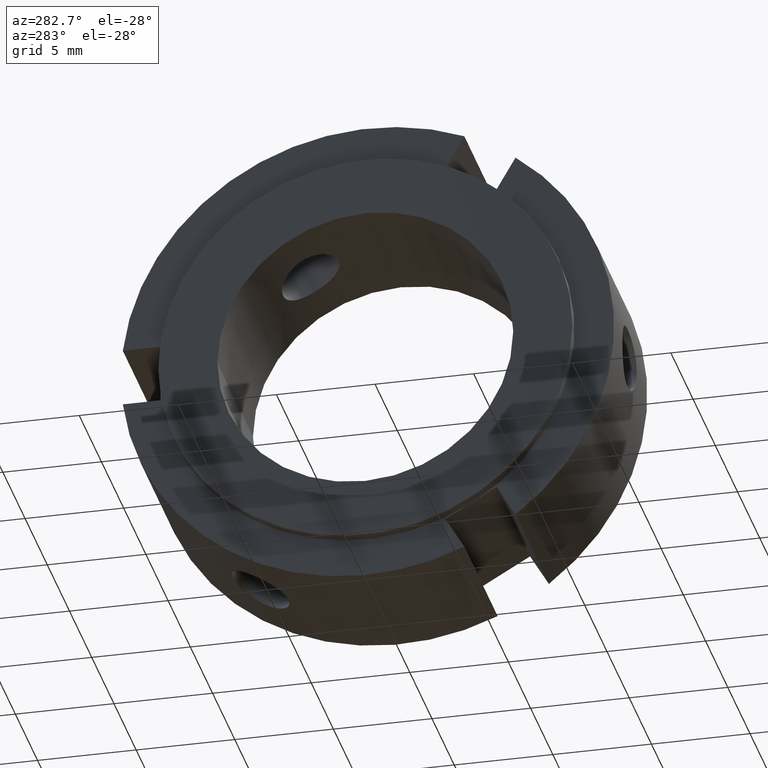
[diagram: clean part render]
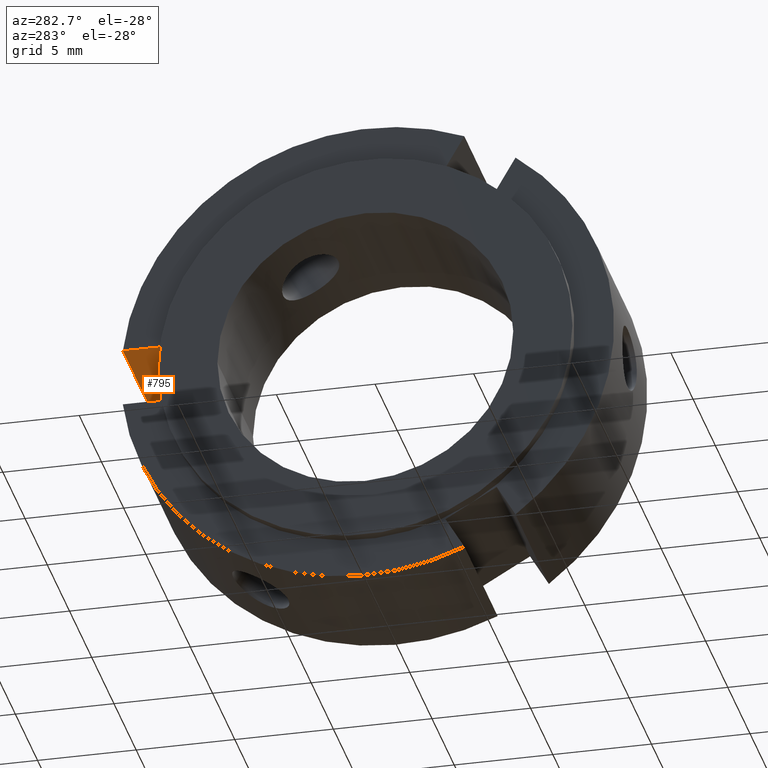
[diagram: same view with one face highlighted and labeled with its STEP entity id]
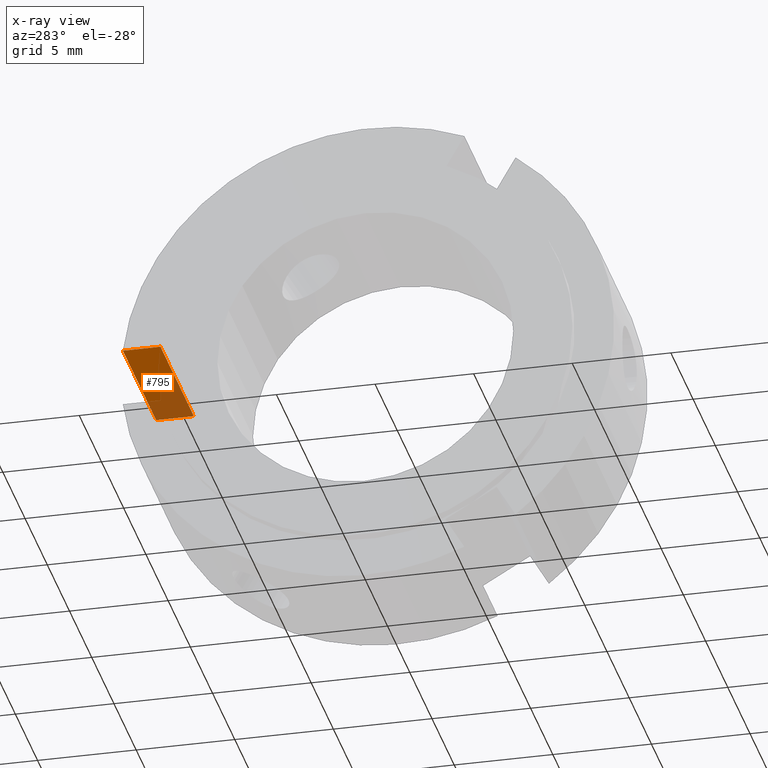
[diagram: x-ray of the same camera — body ghosted, the highlighted face saturated]
A machine part, auxiliary view. The second image highlights one B-rep face of the part: STEP entity #795.
The next image is the same camera in x-ray: the body ghosted, the highlighted face saturated — about 45% of this face is hidden behind the body in this view.
In plain terms, the highlighted planar face has unit normal (0, 0, 1).
Its self-contained STEP definition (entity closure, byte-faithful):
#471=CARTESIAN_POINT('',(0.499999999999998,12.409673645990855,1.500000000000000));
#472=VERTEX_POINT('',#471);
#480=CARTESIAN_POINT('',(0.499999999999998,10.499999999999998,1.500000000000000));
#481=VERTEX_POINT('',#480);
#482=CARTESIAN_POINT('',(0.499999999999998,12.409673645990853,1.500000000000000));
#483=DIRECTION('',(0.0,-1.0,0.0));
#484=VECTOR('',#483,1.909673645990857);
#485=LINE('',#482,#484);
#486=EDGE_CURVE('',#472,#481,#485,.T.);
#557=CARTESIAN_POINT('',(7.999999999999996,10.499999999999998,1.500000000000000));
#558=VERTEX_POINT('',#557);
#565=CARTESIAN_POINT('',(7.999999999999996,12.409673645990855,1.500000000000000));
#566=VERTEX_POINT('',#565);
#567=CARTESIAN_POINT('',(7.999999999999996,10.499999999999998,1.500000000000000));
#568=DIRECTION('',(0.0,1.0,0.0));
#569=VECTOR('',#568,1.909673645990857);
#570=LINE('',#567,#569);
#571=EDGE_CURVE('',#558,#566,#570,.T.);
#611=CARTESIAN_POINT('',(7.999999999999996,12.409673645990855,1.500000000000000));
#612=DIRECTION('',(-1.0,0.0,0.0));
#613=VECTOR('',#612,7.499999999999998);
#614=LINE('',#611,#613);
#615=EDGE_CURVE('',#566,#472,#614,.T.);
#779=CARTESIAN_POINT('',(7.999999999999996,12.499999999999998,1.500000000000000));
#780=DIRECTION('',(0.0,0.0,1.0));
#781=DIRECTION('',(1.0,0.0,0.0));
#782=AXIS2_PLACEMENT_3D('',#779,#780,#781);
#783=PLANE('',#782);
#784=ORIENTED_EDGE('',*,*,#486,.F.);
#785=ORIENTED_EDGE('',*,*,#615,.F.);
#786=ORIENTED_EDGE('',*,*,#571,.F.);
#787=CARTESIAN_POINT('',(7.999999999999996,10.499999999999998,1.500000000000000));
#788=DIRECTION('',(-1.0,0.0,0.0));
#789=VECTOR('',#788,7.499999999999998);
#790=LINE('',#787,#789);
#791=EDGE_CURVE('',#558,#481,#790,.T.);
#792=ORIENTED_EDGE('',*,*,#791,.T.);
#793=EDGE_LOOP('',(#784,#785,#786,#792));
#794=FACE_OUTER_BOUND('',#793,.T.);
#795=ADVANCED_FACE('',(#794),#783,.F.);